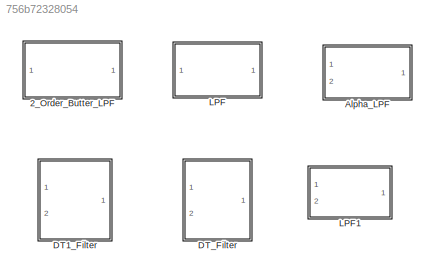
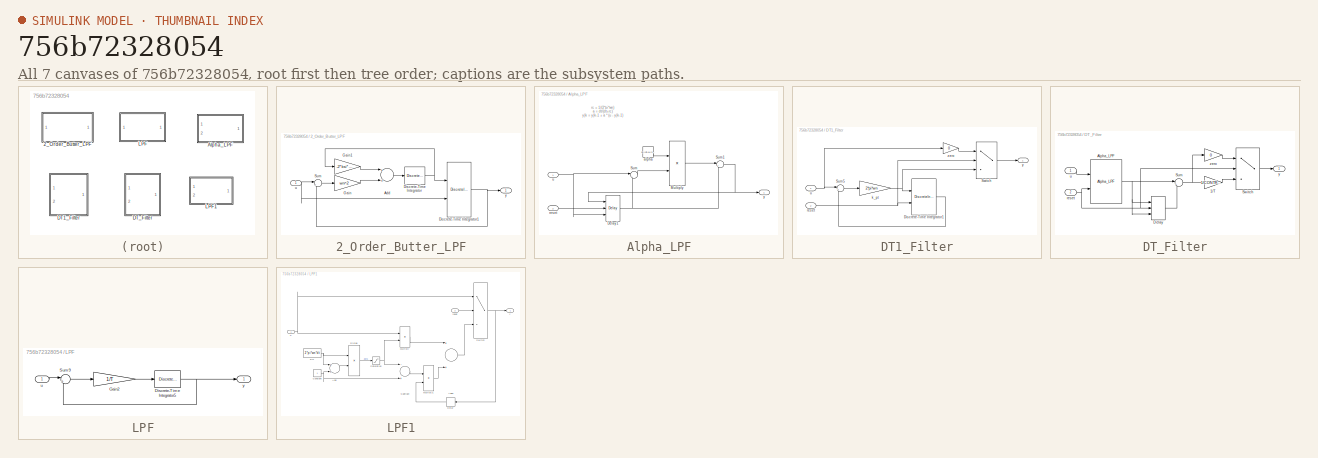
[diagram: thumbnail index - all 7 canvases of the model, root first then tree order]
MODEL slx_756b72328054
KIND library
CONFIG AbsTol = auto
CONFIG EnableMultiTasking = off
CONFIG FixedStep = auto
CONFIG MaxStep = auto
CONFIG MinStep = auto
CONFIG RelTol = 1e-3
CONFIG SampleTimeConstraint = Unconstrained
CONFIG Solver = VariableStepAuto
CONFIG SolverName = VariableStepAuto
CONFIG StartTime = 0.0
CONFIG StopTime = 10.0
BLOCK [SubSystem] 2_Order_Butter_LPF
  Ports = [1, 1]
  RequestExecContextInheritance = off
BLOCK [Sum] 2_Order_Butter_LPF/Add
  InputSameDT = off
  OutDataTypeStr = Inherit: Inherit via internal rule
  Ports = [2, 1]
  SaturateOnIntegerOverflow = off
BLOCK [DiscreteIntegrator] 2_Order_Butter_LPF/Discrete-Time Integrator
  ICPrevOutput = DiscIntNeverNeededParam
  ICPrevScaledInput = DiscIntNeverNeededParam
  InitialConditionSetting = Auto
  Ports = [1, 1]
  SampleTime = -1
BLOCK [DiscreteIntegrator] 2_Order_Butter_LPF/Discrete-Time Integrator1
  ICPrevOutput = DiscIntNeverNeededParam
  ICPrevScaledInput = DiscIntNeverNeededParam
  InitialConditionSetting = Auto
  InitialConditionSource = external
  Ports = [2, 1]
  SampleTime = -1
BLOCK [Gain] 2_Order_Butter_LPF/Gain
  Gain = wn^2
  OutDataTypeStr = Inherit: Inherit via internal rule
  ParamDataTypeStr = Inherit: Inherit via internal rule
  SaturateOnIntegerOverflow = off
BLOCK [Gain] 2_Order_Butter_LPF/Gain1
  Gain = -2*ksi*wn
  OutDataTypeStr = Inherit: Inherit via internal rule
  ParamDataTypeStr = Inherit: Inherit via internal rule
  SaturateOnIntegerOverflow = off
BLOCK [Sum] 2_Order_Butter_LPF/Sum
  IconShape = round
  InputSameDT = off
  Inputs = |+-
  OutDataTypeStr = Inherit: Inherit via internal rule
  Ports = [2, 1]
  SaturateOnIntegerOverflow = off
BLOCK [Inport] 2_Order_Butter_LPF/u
  IconDisplay = Port number
BLOCK [Outport] 2_Order_Butter_LPF/y
  IconDisplay = Port number
BLOCK [SubSystem] Alpha_LPF
  Ports = [2, 1]
  RequestExecContextInheritance = off
BLOCK [Delay] Alpha_LPF/Delay1
  DelayLength = 1
  ExternalReset = Level
  InitialConditionSource = Input port
  InputPortMap = u0,r5,p4
  Ports = [3, 1]
BLOCK [Product] Alpha_LPF/Multiply
  InputSameDT = off
  OutDataTypeStr = Inherit: Inherit via internal rule
  Ports = [2, 1]
  RndMeth = Floor
  SaturateOnIntegerOverflow = off
BLOCK [Sum] Alpha_LPF/Sum
  IconShape = round
  InputSameDT = off
  Inputs = |+-
  OutDataTypeStr = Inherit: Inherit via internal rule
  Ports = [2, 1]
  SaturateOnIntegerOverflow = off
BLOCK [Sum] Alpha_LPF/Sum1
  IconShape = round
  InputSameDT = off
  Inputs = |++
  OutDataTypeStr = Inherit: Inherit via internal rule
  Ports = [2, 1]
  SaturateOnIntegerOverflow = off
BLOCK [Constant] Alpha_LPF/alpha
  OutDataTypeStr = single
  Value = dt/(dt+1/(2*pi*wn))
BLOCK [Inport] Alpha_LPF/reset
  IconDisplay = Port number
  Port = 2
BLOCK [Inport] Alpha_LPF/u
  IconDisplay = Port number
BLOCK [Outport] Alpha_LPF/y
  IconDisplay = Port number
BLOCK [SubSystem] DT1_Filter
  Ports = [2, 1]
  RequestExecContextInheritance = off
BLOCK [DiscreteIntegrator] DT1_Filter/Discrete-Time Integrator1
  ExternalReset = level
  ICPrevOutput = DiscIntNeverNeededParam
  ICPrevScaledInput = DiscIntNeverNeededParam
  Ports = [2, 1]
  SampleTime = -1
BLOCK [Sum] DT1_Filter/Sum5
  IconShape = round
  InputSameDT = off
  Inputs = |+-
  OutDataTypeStr = Inherit: Inherit via internal rule
  Ports = [2, 1]
  SaturateOnIntegerOverflow = off
BLOCK [Switch] DT1_Filter/Switch
  Criteria = u2 > Threshold
  InputSameDT = off
  SaturateOnIntegerOverflow = off
BLOCK [Gain] DT1_Filter/k_pt
  Gain = 2*pi*wn
  ParamDataTypeStr = Inherit: Inherit via internal rule
  SaturateOnIntegerOverflow = off
BLOCK [Inport] DT1_Filter/reset
  IconDisplay = Port number
  Port = 2
BLOCK [Inport] DT1_Filter/u
  IconDisplay = Port number
BLOCK [Outport] DT1_Filter/y
  IconDisplay = Port number
BLOCK [Gain] DT1_Filter/zero
  Gain = 0
  ParamDataTypeStr = Inherit: Inherit via internal rule
  SaturateOnIntegerOverflow = off
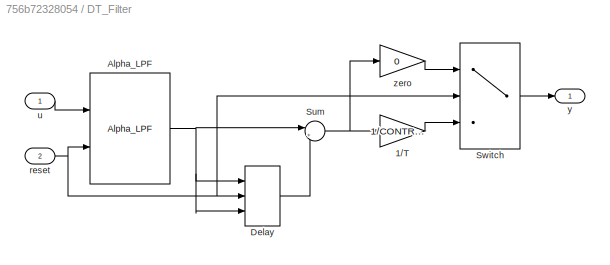
BLOCK [SubSystem] DT_Filter
  Ports = [2, 1]
  RequestExecContextInheritance = off
BLOCK [Gain] DT_Filter/1//T
  Gain = 1/CONTROL_CONST.dt
  ParamDataTypeStr = Inherit: Inherit via internal rule
  SaturateOnIntegerOverflow = off
BLOCK [Reference] DT_Filter/Alpha_LPF  REF=$bdroot/Alpha_LPF
  Ports = [2, 1]
  SourceBlock = $bdroot/Alpha_LPF
BLOCK [Delay] DT_Filter/Delay
  DelayLength = 1
  ExternalReset = Level
  InitialConditionSource = Input port
  InputPortMap = u0,r5,p4
  Ports = [3, 1]
BLOCK [Sum] DT_Filter/Sum
  IconShape = round
  InputSameDT = off
  Inputs = |+-
  OutDataTypeStr = Inherit: Inherit via internal rule
  Ports = [2, 1]
  SaturateOnIntegerOverflow = off
BLOCK [Switch] DT_Filter/Switch
  Criteria = u2 > Threshold
  InputSameDT = off
  SaturateOnIntegerOverflow = off
BLOCK [Inport] DT_Filter/reset
  IconDisplay = Port number
  Port = 2
BLOCK [Inport] DT_Filter/u
  IconDisplay = Port number
BLOCK [Outport] DT_Filter/y
  IconDisplay = Port number
BLOCK [Gain] DT_Filter/zero
  Gain = 0
  ParamDataTypeStr = Inherit: Inherit via internal rule
  SaturateOnIntegerOverflow = off
BLOCK [SubSystem] LPF
  Ports = [1, 1]
  RequestExecContextInheritance = off
BLOCK [DiscreteIntegrator] LPF/Discrete-Time Integrator5
  ICPrevOutput = DiscIntNeverNeededParam
  ICPrevScaledInput = DiscIntNeverNeededParam
  LowerSaturationLimit = -20/180*pi
  OutDataTypeStr = single
  Ports = [1, 1]
  SampleTime = -1
  UpperSaturationLimit = 20/180*pi
BLOCK [Gain] LPF/Gain2
  Gain = 1/T
  OutDataTypeStr = Inherit: Inherit via internal rule
  ParamDataTypeStr = Inherit: Inherit via internal rule
  SaturateOnIntegerOverflow = off
BLOCK [Sum] LPF/Sum9
  IconShape = round
  InputSameDT = off
  Inputs = |+-
  OutDataTypeStr = Inherit: Inherit via internal rule
  Ports = [2, 1]
  SaturateOnIntegerOverflow = off
BLOCK [Inport] LPF/u
  IconDisplay = Port number
BLOCK [Outport] LPF/y
  IconDisplay = Port number
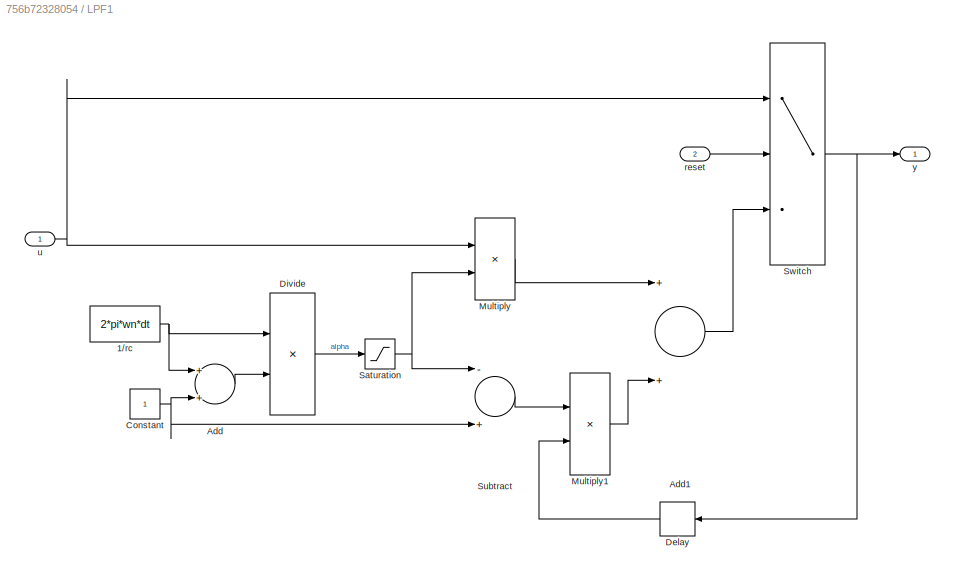
BLOCK [SubSystem] LPF1
  Ports = [2, 1]
  RequestExecContextInheritance = off
BLOCK [Constant] LPF1/1//rc
  OutDataTypeStr = single
  Value = 2*pi*wn*dt
BLOCK [Sum] LPF1/Add
  InputSameDT = off
  OutDataTypeStr = Inherit: Inherit via internal rule
  Ports = [2, 1]
  SaturateOnIntegerOverflow = off
BLOCK [Sum] LPF1/Add1
  InputSameDT = off
  OutDataTypeStr = Inherit: Inherit via internal rule
  Ports = [2, 1]
  SaturateOnIntegerOverflow = off
BLOCK [Constant] LPF1/Constant
  OutDataTypeStr = single
BLOCK [Delay] LPF1/Delay
  DelayLength = 1
  InputPortMap = u0
  Ports = [1, 1]
BLOCK [Product] LPF1/Divide
  InputSameDT = off
  Inputs = */
  OutDataTypeStr = Inherit: Inherit via internal rule
  Ports = [2, 1]
  RndMeth = Floor
  SaturateOnIntegerOverflow = off
BLOCK [Product] LPF1/Multiply
  InputSameDT = off
  OutDataTypeStr = Inherit: Inherit via internal rule
  Ports = [2, 1]
  RndMeth = Floor
  SaturateOnIntegerOverflow = off
BLOCK [Product] LPF1/Multiply1
  InputSameDT = off
  OutDataTypeStr = Inherit: Inherit via internal rule
  Ports = [2, 1]
  RndMeth = Floor
  SaturateOnIntegerOverflow = off
BLOCK [Saturate] LPF1/Saturation
  InputPortMap = u0
  LowerLimit = 0
  Ports = [1, 1]
  UpperLimit = 1
BLOCK [Sum] LPF1/Subtract
  InputSameDT = off
  Inputs = -+
  OutDataTypeStr = Inherit: Inherit via internal rule
  Ports = [2, 1]
  SaturateOnIntegerOverflow = off
BLOCK [Switch] LPF1/Switch
  Criteria = u2 > Threshold
  InputSameDT = off
  SaturateOnIntegerOverflow = off
BLOCK [Inport] LPF1/reset
  IconDisplay = Port number
  Port = 2
BLOCK [Inport] LPF1/u
  IconDisplay = Port number
BLOCK [Outport] LPF1/y
  IconDisplay = Port number
ANNOTATION Alpha_LPF: rc = 1/(2*pi*wn) a = dt/(dt+rc) y|k = y|k-1 + a * (u - y|k-1)
LINE 2_Order_Butter_LPF/Add:1 -> 2_Order_Butter_LPF/Discrete-Time Integrator:1
NET 2_Order_Butter_LPF/Discrete-Time Integrator1:1 -> 2_Order_Butter_LPF/Sum:2, 2_Order_Butter_LPF/y:1
NET 2_Order_Butter_LPF/Discrete-Time Integrator:1 -> 2_Order_Butter_LPF/Discrete-Time Integrator1:1, 2_Order_Butter_LPF/Gain1:1
LINE 2_Order_Butter_LPF/Gain1:1 -> 2_Order_Butter_LPF/Add:1
LINE 2_Order_Butter_LPF/Gain:1 -> 2_Order_Butter_LPF/Add:2
LINE 2_Order_Butter_LPF/Sum:1 -> 2_Order_Butter_LPF/Gain:1
NET 2_Order_Butter_LPF/u:1 -> 2_Order_Butter_LPF/Discrete-Time Integrator1:2, 2_Order_Butter_LPF/Sum:1
NET Alpha_LPF/Delay1:1 -> Alpha_LPF/Sum1:2, Alpha_LPF/Sum:2
LINE Alpha_LPF/Multiply:1 -> Alpha_LPF/Sum1:1
NET Alpha_LPF/Sum1:1 -> Alpha_LPF/Delay1:1, Alpha_LPF/y:1
LINE Alpha_LPF/Sum:1 -> Alpha_LPF/Multiply:2
LINE Alpha_LPF/alpha:1 -> Alpha_LPF/Multiply:1
LINE Alpha_LPF/reset:1 -> Alpha_LPF/Delay1:2
NET Alpha_LPF/u:1 -> Alpha_LPF/Delay1:3, Alpha_LPF/Sum:1
LINE DT1_Filter/Discrete-Time Integrator1:1 -> DT1_Filter/Sum5:2
LINE DT1_Filter/Sum5:1 -> DT1_Filter/k_pt:1
LINE DT1_Filter/Switch:1 -> DT1_Filter/y:1
NET DT1_Filter/k_pt:1 -> DT1_Filter/Discrete-Time Integrator1:1, DT1_Filter/Switch:3
NET DT1_Filter/reset:1 -> DT1_Filter/Discrete-Time Integrator1:2, DT1_Filter/Switch:2
NET DT1_Filter/u:1 -> DT1_Filter/Sum5:1, DT1_Filter/zero:1
LINE DT1_Filter/zero:1 -> DT1_Filter/Switch:1
LINE DT_Filter/1//T:1 -> DT_Filter/Switch:3
NET DT_Filter/Alpha_LPF:1 -> DT_Filter/Delay:1, DT_Filter/Delay:3, DT_Filter/Sum:1
LINE DT_Filter/Delay:1 -> DT_Filter/Sum:2
NET DT_Filter/Sum:1 -> DT_Filter/1//T:1, DT_Filter/zero:1
LINE DT_Filter/Switch:1 -> DT_Filter/y:1
NET DT_Filter/reset:1 -> DT_Filter/Alpha_LPF:2, DT_Filter/Delay:2, DT_Filter/Switch:2
LINE DT_Filter/u:1 -> DT_Filter/Alpha_LPF:1
LINE DT_Filter/zero:1 -> DT_Filter/Switch:1
NET LPF/Discrete-Time Integrator5:1 -> LPF/Sum9:2, LPF/y:1
LINE LPF/Gain2:1 -> LPF/Discrete-Time Integrator5:1
LINE LPF/Sum9:1 -> LPF/Gain2:1
LINE LPF/u:1 -> LPF/Sum9:1
NET LPF1/1//rc:1 -> LPF1/Add:1, LPF1/Divide:1
LINE LPF1/Add1:1 -> LPF1/Switch:3
LINE LPF1/Add:1 -> LPF1/Divide:2
NET LPF1/Constant:1 -> LPF1/Add:2, LPF1/Subtract:2
LINE LPF1/Delay:1 -> LPF1/Multiply1:2
LINE LPF1/Divide:1 -> LPF1/Saturation:1
LINE LPF1/Multiply1:1 -> LPF1/Add1:2
LINE LPF1/Multiply:1 -> LPF1/Add1:1
NET LPF1/Saturation:1 -> LPF1/Multiply:2, LPF1/Subtract:1
LINE LPF1/Subtract:1 -> LPF1/Multiply1:1
NET LPF1/Switch:1 -> LPF1/Delay:1, LPF1/y:1
LINE LPF1/reset:1 -> LPF1/Switch:2
NET LPF1/u:1 -> LPF1/Multiply:1, LPF1/Switch:1
note: NET lines group one-source signal fan-out (src -> all destinations, sorted); 1:1 wires keep LINE
